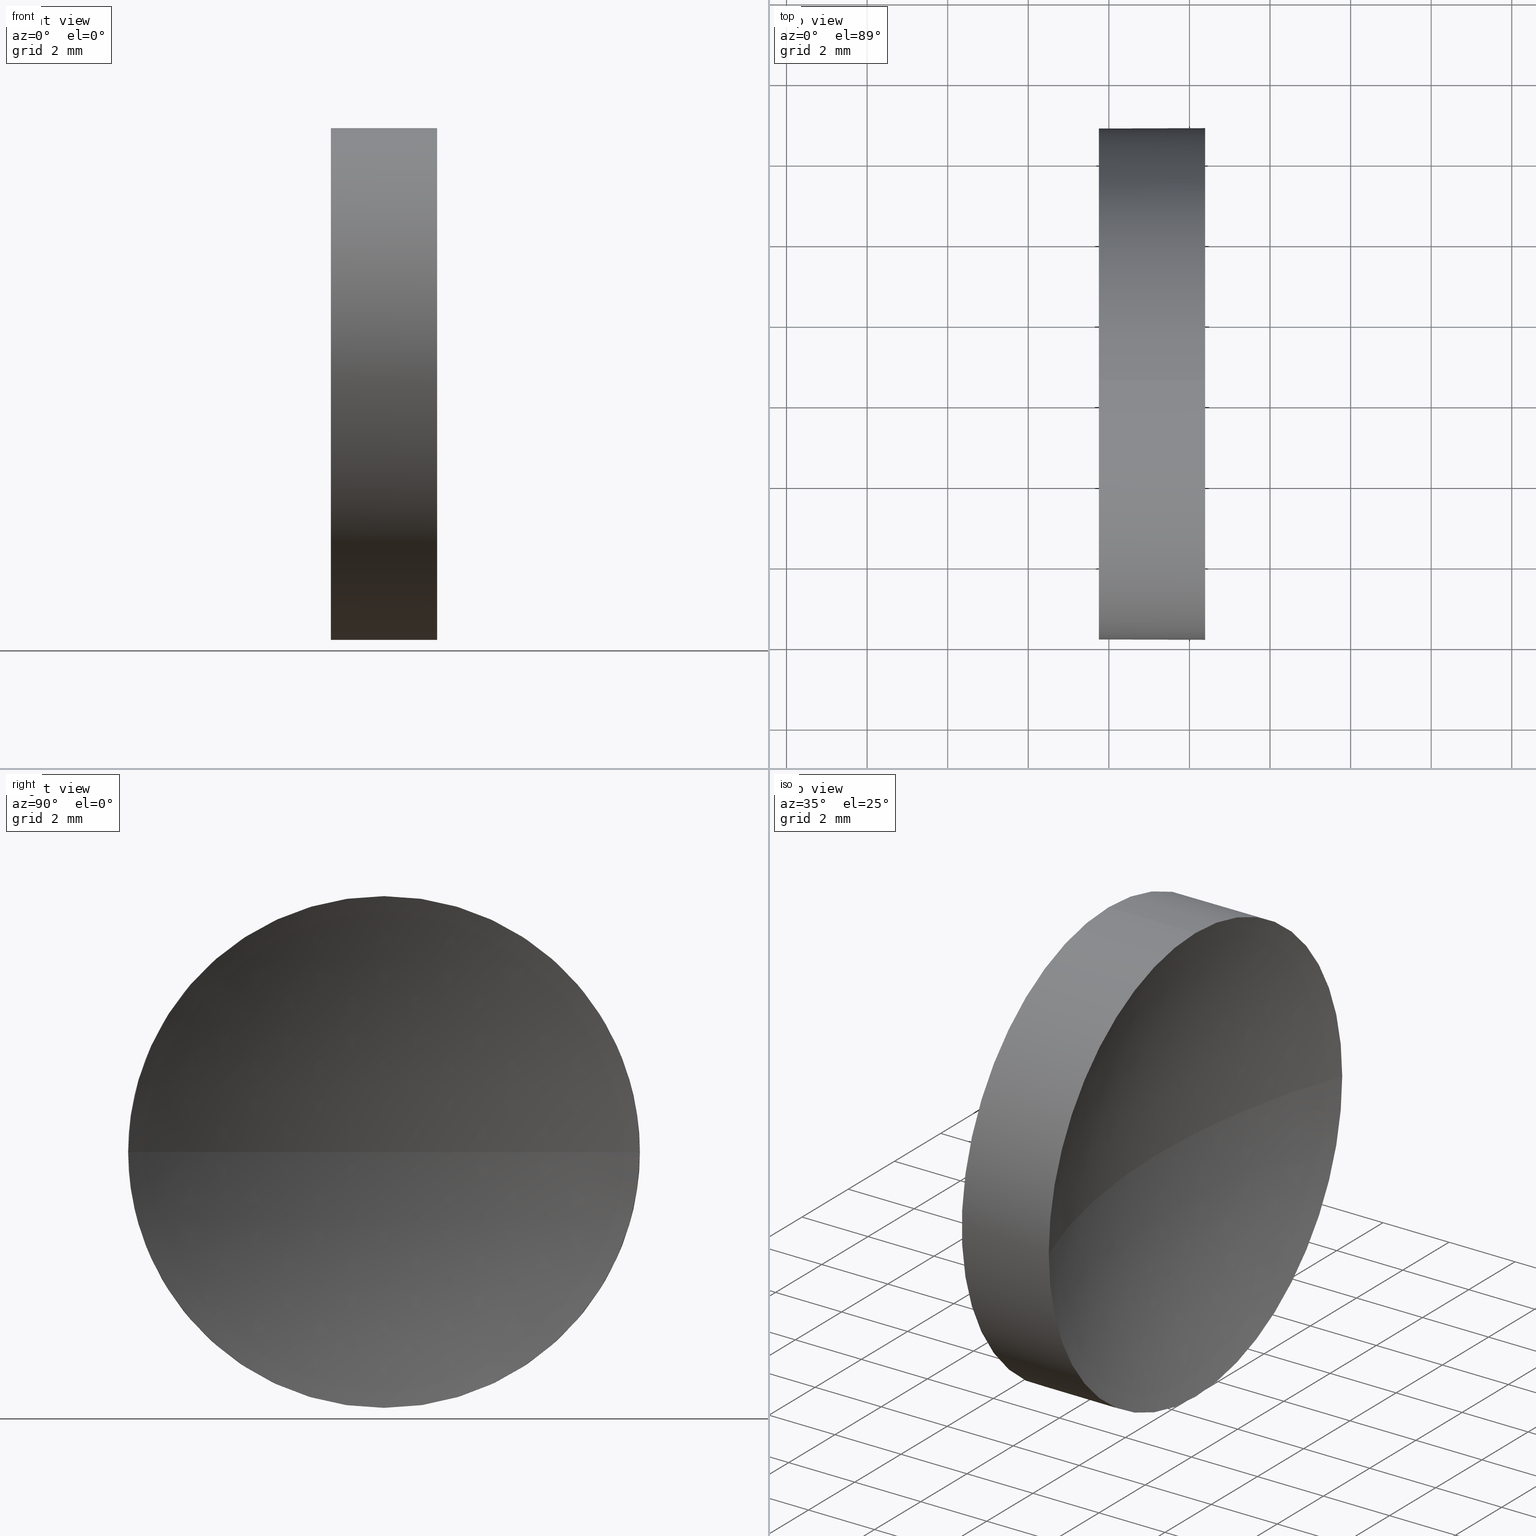
[diagram: canonical four-view strip — front | top / right | iso, engineering-drawing reading convention]
A machine part, canonical four-view strip (front | top / right | iso — engineering-drawing reading convention). The complete STEP part file that produces these views, byte-faithful:
ISO-10303-21;
HEADER;
FILE_DESCRIPTION (( 'STEP AP214' ),
    '1' );
FILE_NAME ('120260.STEP',
    '2019-06-25T02:22:32',
    ( '' ),
    ( '' ),
    'SwSTEP 2.0',
    'SolidWorks 2016',
    '' );
FILE_SCHEMA (( 'AUTOMOTIVE_DESIGN' ));
ENDSEC;

DATA;
#1 = FACE_OUTER_BOUND ( 'NONE', #44, .T. ) ;
#2 =( NAMED_UNIT ( * ) SI_UNIT ( $, .STERADIAN. ) SOLID_ANGLE_UNIT ( ) );
#3 = PLANE ( 'NONE',  #54 ) ;
#4 = CARTESIAN_POINT ( 'NONE',  ( 47.75370850148247100, 28.47759563463748100, 6.350000000000001400 ) ) ;
#5 = CARTESIAN_POINT ( 'NONE',  ( 67.59370850148246700, 28.47759563463748100, 0.0000000000000000000 ) ) ;
#6 = APPLICATION_PROTOCOL_DEFINITION ( 'draft international standard', 'automotive_design', 1998, #32 ) ;
#7 = PRESENTATION_LAYER_ASSIGNMENT (  '', '', ( #20 ) ) ;
#8 = CIRCLE ( 'NONE', #123, 6.350000000000008500 ) ;
#9 = VERTEX_POINT ( 'NONE', #11 ) ;
#10 =( GEOMETRIC_REPRESENTATION_CONTEXT ( 3 ) GLOBAL_UNCERTAINTY_ASSIGNED_CONTEXT ( ( #179 ) ) GLOBAL_UNIT_ASSIGNED_CONTEXT ( ( #156, #104, #2 ) ) REPRESENTATION_CONTEXT ( 'NONE', 'WORKASPACE' ) );
#11 = CARTESIAN_POINT ( 'NONE',  ( 47.75370850148247100, 28.47759563463748100, -6.350000000000001400 ) ) ;
#12 = VERTEX_POINT ( 'NONE', #186 ) ;
#13 = ORIENTED_EDGE ( 'NONE', *, *, #148, .F. ) ;
#14 = PRESENTATION_STYLE_ASSIGNMENT (( #76 ) ) ;
#15 = MECHANICAL_DESIGN_GEOMETRIC_PRESENTATION_REPRESENTATION (  '', ( #95 ), #61 ) ;
#16 = DIRECTION ( 'NONE',  ( 1.000000000000000000, 0.0000000000000000000, 0.0000000000000000000 ) ) ;
#17 = EDGE_CURVE ( 'NONE', #43, #125, #8, .T. ) ;
#18 = ORIENTED_EDGE ( 'NONE', *, *, #148, .T. ) ;
#19 = FILL_AREA_STYLE ('',( #56 ) ) ;
#20 = STYLED_ITEM ( 'NONE', ( #168 ), #134 ) ;
#21 = CIRCLE ( 'NONE', #119, 6.350000000000001400 ) ;
#22 = ADVANCED_FACE ( 'NONE', ( #146 ), #127, .F. ) ;
#23 = VERTEX_POINT ( 'NONE', #167 ) ;
#24 = CARTESIAN_POINT ( 'NONE',  ( 67.59370850148246700, 28.47759563463748100, 0.0000000000000000000 ) ) ;
#25 = DIRECTION ( 'NONE',  ( 0.0000000000000000000, 0.0000000000000000000, 1.000000000000000000 ) ) ;
#26 = DIRECTION ( 'NONE',  ( -1.000000000000000000, -0.0000000000000000000, -0.0000000000000000000 ) ) ;
#27 = EDGE_CURVE ( 'NONE', #152, #9, #21, .T. ) ;
#28 = CARTESIAN_POINT ( 'NONE',  ( 50.38809604507743200, 28.47759563463748100, 0.0000000000000000000 ) ) ;
#29 = ORIENTED_EDGE ( 'NONE', *, *, #17, .F. ) ;
#30 = SHAPE_DEFINITION_REPRESENTATION ( #107, #66 ) ;
#31 =( GEOMETRIC_REPRESENTATION_CONTEXT ( 3 ) GLOBAL_UNCERTAINTY_ASSIGNED_CONTEXT ( ( #170 ) ) GLOBAL_UNIT_ASSIGNED_CONTEXT ( ( #63, #35, #129 ) ) REPRESENTATION_CONTEXT ( 'NONE', 'WORKASPACE' ) );
#32 = APPLICATION_CONTEXT ( 'automotive_design' ) ;
#33 = APPLICATION_PROTOCOL_DEFINITION ( 'draft international standard', 'automotive_design', 1998, #115 ) ;
#34 = CIRCLE ( 'NONE', #139, 6.350000000000008500 ) ;
#35 =( NAMED_UNIT ( * ) PLANE_ANGLE_UNIT ( ) SI_UNIT ( $, .RADIAN. ) );
#36 = MECHANICAL_DESIGN_GEOMETRIC_PRESENTATION_REPRESENTATION (  '', ( #20 ), #31 ) ;
#37 = ORIENTED_EDGE ( 'NONE', *, *, #17, .T. ) ;
#38 = AXIS2_PLACEMENT_3D ( 'NONE', #5, #113, #145 ) ;
#39 = DIRECTION ( 'NONE',  ( 0.0000000000000000000, 0.0000000000000000000, 1.000000000000000000 ) ) ;
#40 = DIRECTION ( 'NONE',  ( 0.0000000000000000000, 0.0000000000000000000, 1.000000000000000000 ) ) ;
#41 = COLOUR_RGB ( '',1.000000000000000000, 1.000000000000000000, 1.000000000000000000 ) ;
#42 = DIRECTION ( 'NONE',  ( 0.0000000000000000000, -1.000000000000000000, -1.224646799147353000E-016 ) ) ;
#43 = VERTEX_POINT ( 'NONE', #137 ) ;
#44 = EDGE_LOOP ( 'NONE', ( #114, #120, #37, #53, #89 ) ) ;
#45 = FILL_AREA_STYLE ('',( #144 ) ) ;
#46 = PRODUCT_CONTEXT ( 'NONE', #32, 'mechanical' ) ;
#47 = PRODUCT_DEFINITION ( 'δ֪', '', #73, #52 ) ;
#48 = DIRECTION ( 'NONE',  ( -1.000000000000000000, -0.0000000000000000000, -0.0000000000000000000 ) ) ;
#49 = LINE ( 'NONE', #117, #96 ) ;
#50 = EDGE_CURVE ( 'NONE', #12, #23, #140, .T. ) ;
#51 = ORIENTED_EDGE ( 'NONE', *, *, #141, .T. ) ;
#52 = PRODUCT_DEFINITION_CONTEXT ( 'detailed design', #115, 'design' ) ;
#53 = ORIENTED_EDGE ( 'NONE', *, *, #67, .T. ) ;
#54 = AXIS2_PLACEMENT_3D ( 'NONE', #169, #79, #116 ) ;
#55 = LINE ( 'NONE', #72, #160 ) ;
#56 = FILL_AREA_STYLE_COLOUR ( '', #41 ) ;
#57 = DIRECTION ( 'NONE',  ( 0.0000000000000000000, 0.0000000000000000000, 1.000000000000000000 ) ) ;
#58 = CARTESIAN_POINT ( 'NONE',  ( 50.38809604507743200, 28.47759563463748100, 0.0000000000000000000 ) ) ;
#59 = DIRECTION ( 'NONE',  ( 0.0000000000000000000, -1.224646799147353200E-016, 1.000000000000000000 ) ) ;
#60 = FACE_OUTER_BOUND ( 'NONE', #177, .T. ) ;
#61 =( GEOMETRIC_REPRESENTATION_CONTEXT ( 3 ) GLOBAL_UNCERTAINTY_ASSIGNED_CONTEXT ( ( #153 ) ) GLOBAL_UNIT_ASSIGNED_CONTEXT ( ( #142, #157, #175 ) ) REPRESENTATION_CONTEXT ( 'NONE', 'WORKASPACE' ) );
#62 = ADVANCED_FACE ( 'NONE', ( #158 ), #162, .T. ) ;
#63 =( LENGTH_UNIT ( ) NAMED_UNIT ( * ) SI_UNIT ( .MILLI., .METRE. ) );
#64 = SURFACE_SIDE_STYLE ('',( #71 ) ) ;
#65 = CIRCLE ( 'NONE', #178, 18.34000000000000000 ) ;
#66 = ADVANCED_BREP_SHAPE_REPRESENTATION ( '120260', ( #134, #90 ), #10 ) ;
#67 = EDGE_CURVE ( 'NONE', #125, #152, #55, .T. ) ;
#68 = EDGE_CURVE ( 'NONE', #12, #112, #65, .T. ) ;
#69 = ADVANCED_FACE ( 'NONE', ( #1 ), #82, .T. ) ;
#70 = DIRECTION ( 'NONE',  ( -1.000000000000000000, 0.0000000000000000000, 0.0000000000000000000 ) ) ;
#71 = SURFACE_STYLE_FILL_AREA ( #45 ) ;
#72 = CARTESIAN_POINT ( 'NONE',  ( 44.78209190302423800, 28.47759563463748100, 6.350000000000005000 ) ) ;
#73 = PRODUCT_DEFINITION_FORMATION_WITH_SPECIFIED_SOURCE ( '�κ�', '', #154, .NOT_KNOWN. ) ;
#74 = ORIENTED_EDGE ( 'NONE', *, *, #50, .F. ) ;
#75 = COLOUR_RGB ( '',1.000000000000000000, 1.000000000000000000, 1.000000000000000000 ) ;
#76 = SURFACE_STYLE_USAGE ( .BOTH. , #64 ) ;
#77 = CIRCLE ( 'NONE', #103, 6.350000000000001400 ) ;
#78 = DIRECTION ( 'NONE',  ( -1.000000000000000000, -0.0000000000000000000, -0.0000000000000000000 ) ) ;
#79 = DIRECTION ( 'NONE',  ( 1.000000000000000000, 0.0000000000000000000, 0.0000000000000000000 ) ) ;
#80 = AXIS2_PLACEMENT_3D ( 'NONE', #109, #26, #150 ) ;
#81 = DIRECTION ( 'NONE',  ( -1.000000000000000000, -0.0000000000000000000, -0.0000000000000000000 ) ) ;
#82 = CYLINDRICAL_SURFACE ( 'NONE', #172, 6.350000000000005000 ) ;
#83 = EDGE_LOOP ( 'NONE', ( #85, #13, #29, #97 ) ) ;
#84 = PRODUCT_RELATED_PRODUCT_CATEGORY ( 'part', '', ( #154 ) ) ;
#85 = ORIENTED_EDGE ( 'NONE', *, *, #68, .F. ) ;
#86 = CARTESIAN_POINT ( 'NONE',  ( 44.78209190302423800, 28.47759563463748100, 0.0000000000000000000 ) ) ;
#87 = CARTESIAN_POINT ( 'NONE',  ( 67.59370850148246700, 28.47759563463748100, 0.0000000000000000000 ) ) ;
#88 = AXIS2_PLACEMENT_3D ( 'NONE', #143, #78, #174 ) ;
#89 = ORIENTED_EDGE ( 'NONE', *, *, #141, .F. ) ;
#90 = AXIS2_PLACEMENT_3D ( 'NONE', #93, #101, #16 ) ;
#91 = SURFACE_STYLE_FILL_AREA ( #19 ) ;
#92 = SURFACE_SIDE_STYLE ('',( #91 ) ) ;
#93 = CARTESIAN_POINT ( 'NONE',  ( 0.0000000000000000000, 0.0000000000000000000, 0.0000000000000000000 ) ) ;
#94 = ORIENTED_EDGE ( 'NONE', *, *, #99, .F. ) ;
#95 = STYLED_ITEM ( 'NONE', ( #14 ), #66 ) ;
#96 = VECTOR ( 'NONE', #81, 1000.000000000000000 ) ;
#97 = ORIENTED_EDGE ( 'NONE', *, *, #99, .T. ) ;
#98 = ORIENTED_EDGE ( 'NONE', *, *, #67, .F. ) ;
#99 = EDGE_CURVE ( 'NONE', #43, #112, #118, .T. ) ;
#100 = ORIENTED_EDGE ( 'NONE', *, *, #50, .T. ) ;
#101 = DIRECTION ( 'NONE',  ( 0.0000000000000000000, 0.0000000000000000000, 1.000000000000000000 ) ) ;
#102 = CARTESIAN_POINT ( 'NONE',  ( 50.38809604507743200, 28.47759563463748100, 0.0000000000000000000 ) ) ;
#103 = AXIS2_PLACEMENT_3D ( 'NONE', #173, #128, #130 ) ;
#104 =( NAMED_UNIT ( * ) PLANE_ANGLE_UNIT ( ) SI_UNIT ( $, .RADIAN. ) );
#105 = PRESENTATION_LAYER_ASSIGNMENT (  '', '', ( #95 ) ) ;
#106 = CLOSED_SHELL ( 'NONE', ( #62, #22, #147, #69, #131 ) ) ;
#107 = PRODUCT_DEFINITION_SHAPE ( 'NONE', 'NONE',  #47 ) ;
#108 = DIRECTION ( 'NONE',  ( -1.000000000000000000, -0.0000000000000000000, -0.0000000000000000000 ) ) ;
#109 = CARTESIAN_POINT ( 'NONE',  ( 44.78209190302423800, 28.47759563463748100, 0.0000000000000000000 ) ) ;
#110 = CARTESIAN_POINT ( 'NONE',  ( 47.75370850148247100, 28.47759563463748100, 0.0000000000000000000 ) ) ;
#111 = CARTESIAN_POINT ( 'NONE',  ( 50.38809604507743200, 28.47759563463748100, 6.350000000000007600 ) ) ;
#112 = VERTEX_POINT ( 'NONE', #163 ) ;
#113 = DIRECTION ( 'NONE',  ( 0.0000000000000000000, 0.0000000000000000000, 1.000000000000000000 ) ) ;
#114 = ORIENTED_EDGE ( 'NONE', *, *, #133, .F. ) ;
#115 = APPLICATION_CONTEXT ( 'automotive_design' ) ;
#116 = DIRECTION ( 'NONE',  ( 0.0000000000000000000, 0.0000000000000000000, -1.000000000000000000 ) ) ;
#117 = CARTESIAN_POINT ( 'NONE',  ( 44.78209190302423800, 28.47759563463748100, -6.350000000000005000 ) ) ;
#118 = CIRCLE ( 'NONE', #183, 18.33999999999999600 ) ;
#119 = AXIS2_PLACEMENT_3D ( 'NONE', #110, #165, #25 ) ;
#120 = ORIENTED_EDGE ( 'NONE', *, *, #135, .T. ) ;
#121 = DIRECTION ( 'NONE',  ( 0.0000000000000000000, 0.0000000000000000000, -1.000000000000000000 ) ) ;
#122 = FACE_OUTER_BOUND ( 'NONE', #83, .T. ) ;
#123 = AXIS2_PLACEMENT_3D ( 'NONE', #28, #151, #166 ) ;
#124 = DIRECTION ( 'NONE',  ( 0.0000000000000000000, -1.000000000000000000, 0.0000000000000000000 ) ) ;
#125 = VERTEX_POINT ( 'NONE', #111 ) ;
#126 = AXIS2_PLACEMENT_3D ( 'NONE', #58, #108, #57 ) ;
#127 = SPHERICAL_SURFACE ( 'NONE', #161, 18.34000000000000000 ) ;
#128 = DIRECTION ( 'NONE',  ( -1.000000000000000000, -0.0000000000000000000, -0.0000000000000000000 ) ) ;
#129 =( NAMED_UNIT ( * ) SI_UNIT ( $, .STERADIAN. ) SOLID_ANGLE_UNIT ( ) );
#130 = DIRECTION ( 'NONE',  ( 0.0000000000000000000, 0.0000000000000000000, 1.000000000000000000 ) ) ;
#131 = ADVANCED_FACE ( 'NONE', ( #60 ), #3, .F. ) ;
#132 = ORIENTED_EDGE ( 'NONE', *, *, #27, .T. ) ;
#133 = EDGE_CURVE ( 'NONE', #23, #9, #49, .T. ) ;
#134 = MANIFOLD_SOLID_BREP ( '��ת1', #106 ) ;
#135 = EDGE_CURVE ( 'NONE', #23, #43, #34, .T. ) ;
#136 = EDGE_LOOP ( 'NONE', ( #100, #164, #181, #98, #18 ) ) ;
#137 = CARTESIAN_POINT ( 'NONE',  ( 50.38809604507743200, 22.12759563463748000, 0.0000000000000000000 ) ) ;
#138 = CARTESIAN_POINT ( 'NONE',  ( 67.59370850148246700, 28.47759563463748100, 0.0000000000000000000 ) ) ;
#139 = AXIS2_PLACEMENT_3D ( 'NONE', #102, #48, #159 ) ;
#140 = CIRCLE ( 'NONE', #126, 6.350000000000008500 ) ;
#141 = EDGE_CURVE ( 'NONE', #9, #152, #77, .T. ) ;
#142 =( LENGTH_UNIT ( ) NAMED_UNIT ( * ) SI_UNIT ( .MILLI., .METRE. ) );
#143 = CARTESIAN_POINT ( 'NONE',  ( 50.38809604507743200, 28.47759563463748100, 0.0000000000000000000 ) ) ;
#144 = FILL_AREA_STYLE_COLOUR ( '', #75 ) ;
#145 = DIRECTION ( 'NONE',  ( 0.0000000000000000000, -1.000000000000000000, 0.0000000000000000000 ) ) ;
#146 = FACE_OUTER_BOUND ( 'NONE', #171, .T. ) ;
#147 = ADVANCED_FACE ( 'NONE', ( #122 ), #180, .F. ) ;
#148 = EDGE_CURVE ( 'NONE', #125, #12, #185, .T. ) ;
#149 = ORIENTED_EDGE ( 'NONE', *, *, #135, .F. ) ;
#150 = DIRECTION ( 'NONE',  ( 0.0000000000000000000, 0.0000000000000000000, 1.000000000000000000 ) ) ;
#151 = DIRECTION ( 'NONE',  ( -1.000000000000000000, -0.0000000000000000000, -0.0000000000000000000 ) ) ;
#152 = VERTEX_POINT ( 'NONE', #4 ) ;
#153 = UNCERTAINTY_MEASURE_WITH_UNIT (LENGTH_MEASURE( 1.000000000000000100E-005 ), #142, 'distance_accuracy_value', 'NONE');
#154 = PRODUCT ( '120260', '120260', '', ( #46 ) ) ;
#155 = ORIENTED_EDGE ( 'NONE', *, *, #68, .T. ) ;
#156 =( LENGTH_UNIT ( ) NAMED_UNIT ( * ) SI_UNIT ( .MILLI., .METRE. ) );
#157 =( NAMED_UNIT ( * ) PLANE_ANGLE_UNIT ( ) SI_UNIT ( $, .RADIAN. ) );
#158 = FACE_OUTER_BOUND ( 'NONE', #136, .T. ) ;
#159 = DIRECTION ( 'NONE',  ( 0.0000000000000000000, 0.0000000000000000000, 1.000000000000000000 ) ) ;
#160 = VECTOR ( 'NONE', #182, 1000.000000000000000 ) ;
#161 = AXIS2_PLACEMENT_3D ( 'NONE', #24, #40, #124 ) ;
#162 = CYLINDRICAL_SURFACE ( 'NONE', #80, 6.350000000000005000 ) ;
#163 = CARTESIAN_POINT ( 'NONE',  ( 49.25370850148247100, 28.47759563463748100, 0.0000000000000000000 ) ) ;
#164 = ORIENTED_EDGE ( 'NONE', *, *, #133, .T. ) ;
#165 = DIRECTION ( 'NONE',  ( -1.000000000000000000, -0.0000000000000000000, -0.0000000000000000000 ) ) ;
#166 = DIRECTION ( 'NONE',  ( 0.0000000000000000000, 0.0000000000000000000, 1.000000000000000000 ) ) ;
#167 = CARTESIAN_POINT ( 'NONE',  ( 50.38809604507743200, 28.47759563463748100, -6.350000000000007600 ) ) ;
#168 = PRESENTATION_STYLE_ASSIGNMENT (( #176 ) ) ;
#169 = CARTESIAN_POINT ( 'NONE',  ( 47.75370850148247100, 28.47759563463748100, 0.0000000000000000000 ) ) ;
#170 = UNCERTAINTY_MEASURE_WITH_UNIT (LENGTH_MEASURE( 1.000000000000000100E-005 ), #63, 'distance_accuracy_value', 'NONE');
#171 = EDGE_LOOP ( 'NONE', ( #74, #155, #94, #149 ) ) ;
#172 = AXIS2_PLACEMENT_3D ( 'NONE', #86, #184, #39 ) ;
#173 = CARTESIAN_POINT ( 'NONE',  ( 47.75370850148247100, 28.47759563463748100, 0.0000000000000000000 ) ) ;
#174 = DIRECTION ( 'NONE',  ( 0.0000000000000000000, 0.0000000000000000000, 1.000000000000000000 ) ) ;
#175 =( NAMED_UNIT ( * ) SI_UNIT ( $, .STERADIAN. ) SOLID_ANGLE_UNIT ( ) );
#176 = SURFACE_STYLE_USAGE ( .BOTH. , #92 ) ;
#177 = EDGE_LOOP ( 'NONE', ( #132, #51 ) ) ;
#178 = AXIS2_PLACEMENT_3D ( 'NONE', #138, #59, #42 ) ;
#179 = UNCERTAINTY_MEASURE_WITH_UNIT (LENGTH_MEASURE( 1.000000000000000100E-005 ), #156, 'distance_accuracy_value', 'NONE');
#180 = SPHERICAL_SURFACE ( 'NONE', #38, 18.34000000000000000 ) ;
#181 = ORIENTED_EDGE ( 'NONE', *, *, #27, .F. ) ;
#182 = DIRECTION ( 'NONE',  ( -1.000000000000000000, -0.0000000000000000000, -0.0000000000000000000 ) ) ;
#183 = AXIS2_PLACEMENT_3D ( 'NONE', #87, #121, #70 ) ;
#184 = DIRECTION ( 'NONE',  ( -1.000000000000000000, -0.0000000000000000000, -0.0000000000000000000 ) ) ;
#185 = CIRCLE ( 'NONE', #88, 6.350000000000008500 ) ;
#186 = CARTESIAN_POINT ( 'NONE',  ( 50.38809604507743200, 34.82759563463748300, 7.776507174585693100E-016 ) ) ;
ENDSEC;
END-ISO-10303-21;
